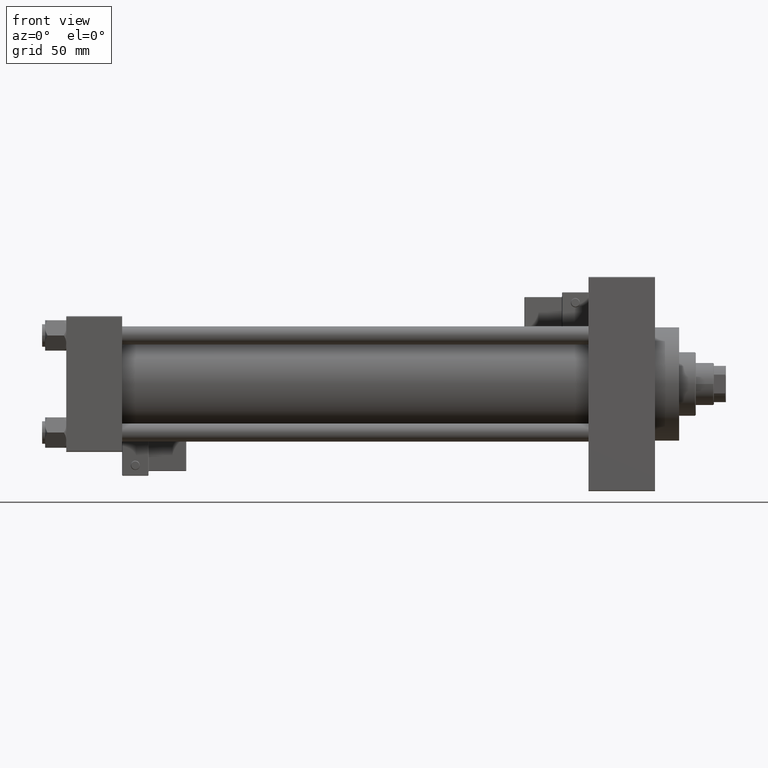
[diagram: clean part render]
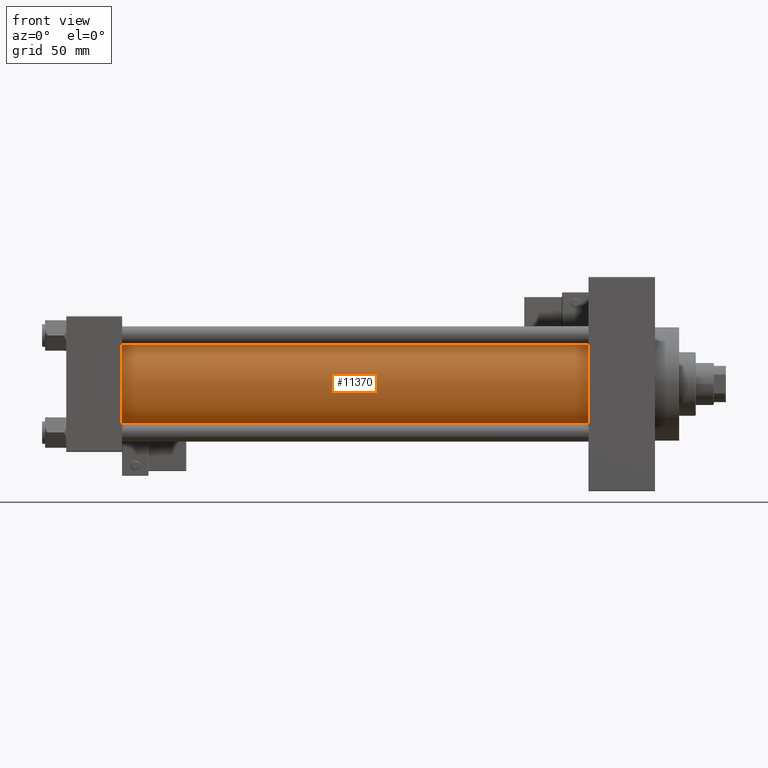
[diagram: same view with one face highlighted and labeled with its STEP entity id]
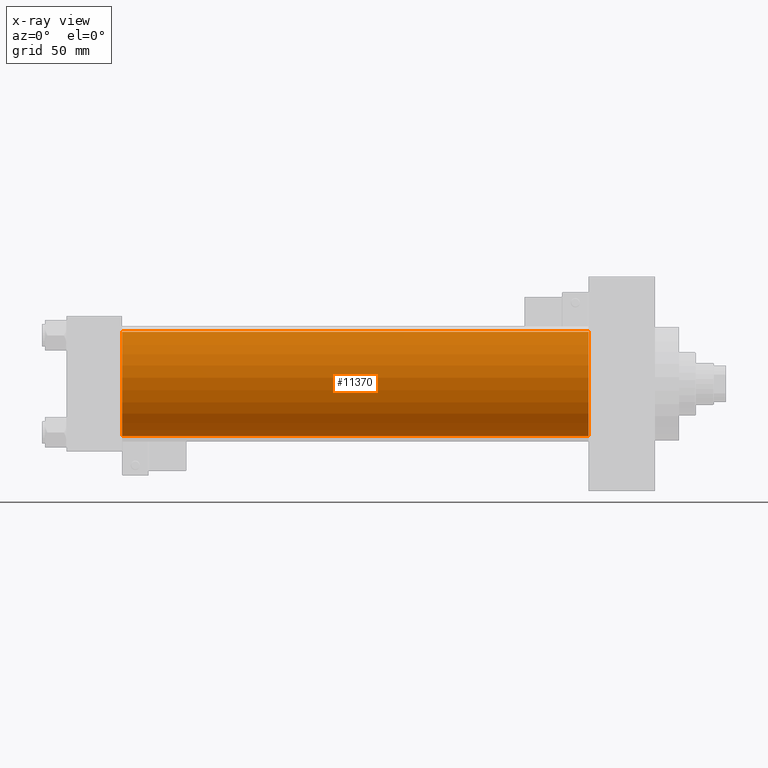
[diagram: x-ray of the same camera — body ghosted, the highlighted face saturated]
A machine part, front view. The second image highlights one B-rep face of the part: STEP entity #11370.
The next image is the same camera in x-ray: the body ghosted, the highlighted face saturated — about 0% of this face is hidden behind the body in this view.
In plain terms, the highlighted cylindrical surface (partial cylindrical patch) has radius 34.5 mm, axis along (-1, -0, -0).
Its self-contained STEP definition (entity closure, byte-faithful):
#562 = DIRECTION ( 'NONE',  ( 0.000000000000000000, 0.000000000000000000, 1.000000000000000000 ) ) ;
#3376 = VERTEX_POINT ( 'NONE', #22981 ) ;
#4412 = ORIENTED_EDGE ( 'NONE', *, *, #5901, .F. ) ;
#5901 = EDGE_CURVE ( 'NONE', #23446, #45335, #49783, .T. ) ;
#6375 = CARTESIAN_POINT ( 'NONE',  ( 346.0000000000000000, 1.622946243093158675E-15, -34.50000000000000000 ) ) ;
#6744 = DIRECTION ( 'NONE',  ( -1.000000000000000000, -0.000000000000000000, -0.000000000000000000 ) ) ;
#7075 = DIRECTION ( 'NONE',  ( 0.000000000000000000, 0.000000000000000000, -1.000000000000000000 ) ) ;
#7146 = AXIS2_PLACEMENT_3D ( 'NONE', #36488, #36234, #562 ) ;
#7966 = CIRCLE ( 'NONE', #7146, 34.50000000000000000 ) ;
#11370 = ADVANCED_FACE ( 'NONE', ( #19683 ), #11870, .T. ) ;
#11834 = EDGE_CURVE ( 'NONE', #47973, #3376, #46829, .T. ) ;
#11870 = CYLINDRICAL_SURFACE ( 'NONE', #50637, 34.50000000000000000 ) ;
#13143 = ORIENTED_EDGE ( 'NONE', *, *, #11834, .T. ) ;
#14168 = EDGE_LOOP ( 'NONE', ( #4412, #36236, #13143, #43450 ) ) ;
#15781 = DIRECTION ( 'NONE',  ( 0.000000000000000000, 0.000000000000000000, 1.000000000000000000 ) ) ;
#18845 = VECTOR ( 'NONE', #46389, 1000.000000000000000 ) ;
#19683 = FACE_OUTER_BOUND ( 'NONE', #14168, .T. ) ;
#22981 = CARTESIAN_POINT ( 'NONE',  ( 36.99999999999997868, -2.602085213965210642E-15, 34.50000000000000000 ) ) ;
#23446 = VERTEX_POINT ( 'NONE', #6375 ) ;
#23702 = CARTESIAN_POINT ( 'NONE',  ( 36.99999999999997868, 1.622946243093158675E-15, -34.50000000000000000 ) ) ;
#26123 = CARTESIAN_POINT ( 'NONE',  ( 346.0000000000000000, -2.602085213965210642E-15, 34.50000000000000000 ) ) ;
#30418 = EDGE_CURVE ( 'NONE', #47973, #23446, #36190, .T. ) ;
#33158 = DIRECTION ( 'NONE',  ( 1.000000000000000000, 0.000000000000000000, 0.000000000000000000 ) ) ;
#35214 = EDGE_CURVE ( 'NONE', #3376, #45335, #7966, .T. ) ;
#36190 = CIRCLE ( 'NONE', #49505, 34.50000000000000000 ) ;
#36234 = DIRECTION ( 'NONE',  ( 1.000000000000000000, -0.000000000000000000, 0.000000000000000000 ) ) ;
#36236 = ORIENTED_EDGE ( 'NONE', *, *, #30418, .F. ) ;
#36488 = CARTESIAN_POINT ( 'NONE',  ( 36.99999999999997868, -2.602085213965210642E-15, 0.000000000000000000 ) ) ;
#37057 = CARTESIAN_POINT ( 'NONE',  ( 346.0000000000000000, -2.602085213965210642E-15, 0.000000000000000000 ) ) ;
#39462 = CARTESIAN_POINT ( 'NONE',  ( 346.0000000000000000, -2.602085213965210642E-15, 0.000000000000000000 ) ) ;
#42736 = CARTESIAN_POINT ( 'NONE',  ( 346.0000000000000000, 1.622946243093158675E-15, -34.50000000000000000 ) ) ;
#43450 = ORIENTED_EDGE ( 'NONE', *, *, #35214, .T. ) ;
#44036 = VECTOR ( 'NONE', #6744, 1000.000000000000000 ) ;
#45335 = VERTEX_POINT ( 'NONE', #23702 ) ;
#46389 = DIRECTION ( 'NONE',  ( -1.000000000000000000, -0.000000000000000000, -0.000000000000000000 ) ) ;
#46829 = LINE ( 'NONE', #50477, #44036 ) ;
#47973 = VERTEX_POINT ( 'NONE', #26123 ) ;
#49505 = AXIS2_PLACEMENT_3D ( 'NONE', #37057, #33158, #7075 ) ;
#49783 = LINE ( 'NONE', #42736, #18845 ) ;
#50477 = CARTESIAN_POINT ( 'NONE',  ( 346.0000000000000000, -2.602085213965210642E-15, 34.50000000000000000 ) ) ;
#50637 = AXIS2_PLACEMENT_3D ( 'NONE', #39462, #51442, #15781 ) ;
#51442 = DIRECTION ( 'NONE',  ( -1.000000000000000000, -0.000000000000000000, -0.000000000000000000 ) ) ;